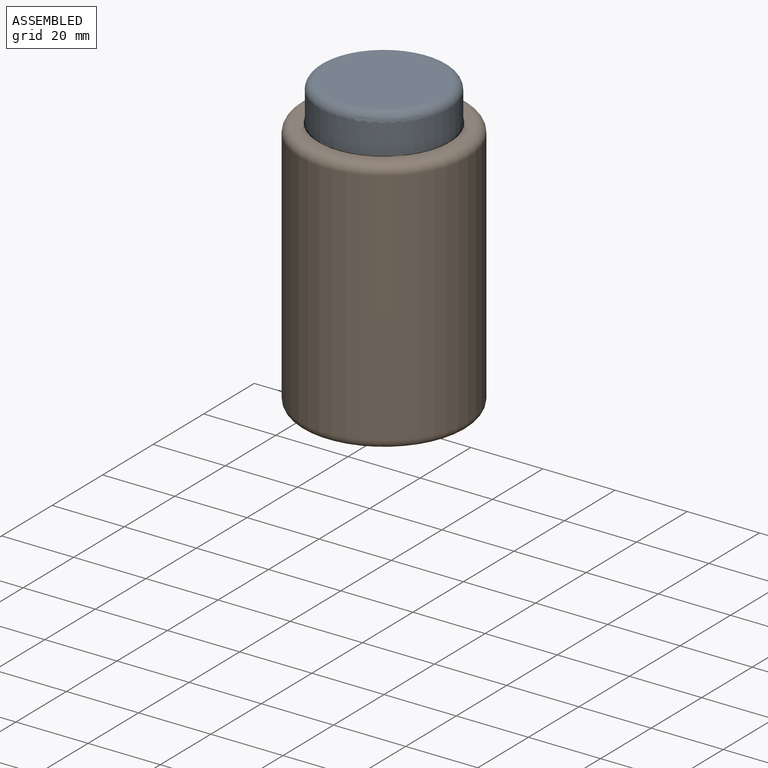
[diagram: assembled view]
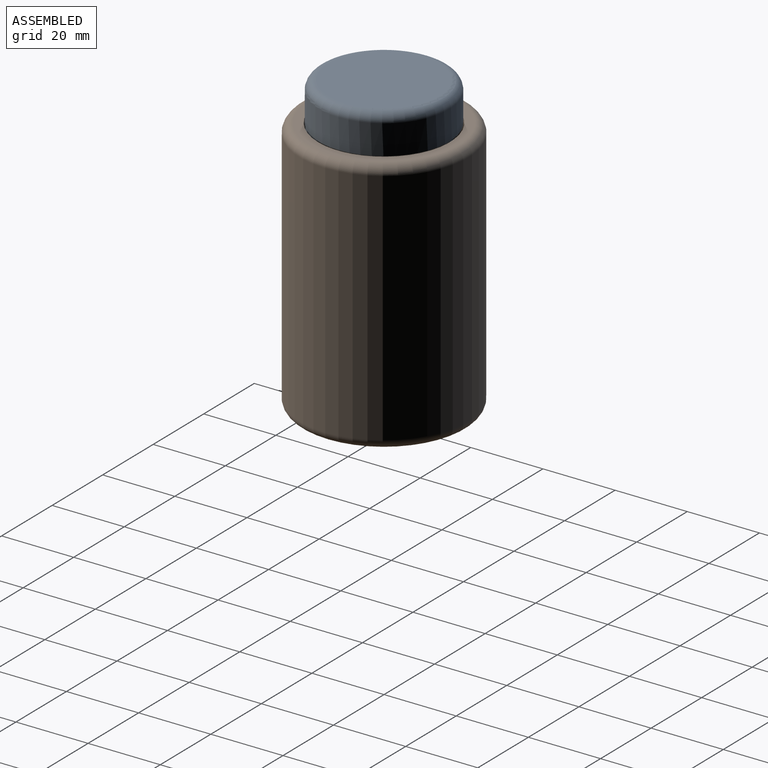
[diagram: assembled view, second angle]
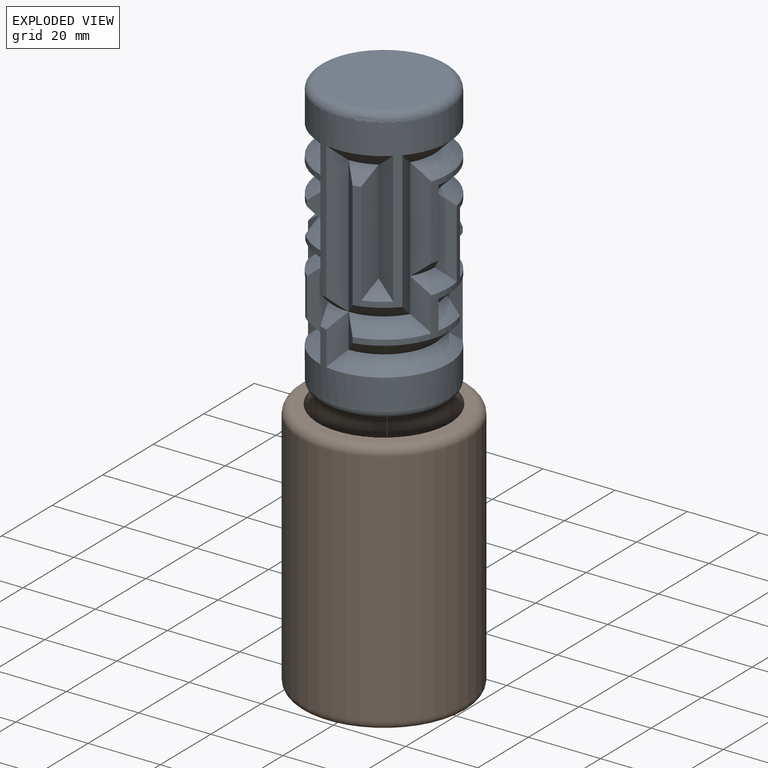
[diagram: exploded view]
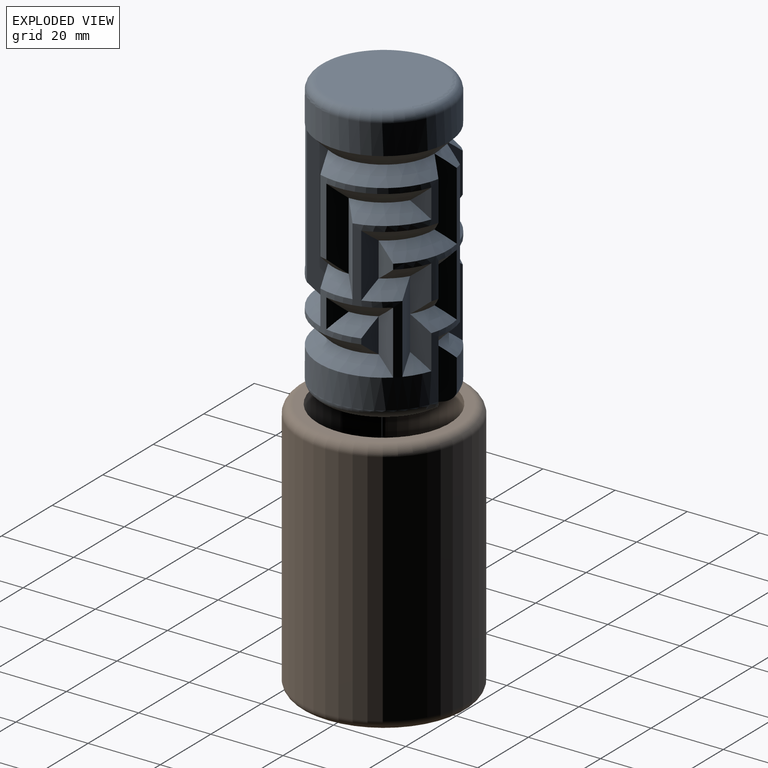
[diagram: exploded view, second angle]
ASSEMBLY  parts=2 mates=2
PART A: 108 faces, bbox 39x39x77 mm
  f0: cylinder r=18mm len=46.25mm, axis (0,0,-1), area 1230.6mm2, adj f27,f40,f41,f42,f43,f44,f45,f46
  f1: cylinder r=18mm len=55.75mm, axis (0,0,-1), area 1625.7mm2, adj f2,f3,f4,f5,f6,f7,f8,f9
  f2: plane 18.75x3.63mm, normal (-0.71,0.71,0), area 84.1mm2, adj f1,f3,f83,f102,f106
  f3: cone r=14mm half-angle=45deg, axis (0,0,1), area 47.4mm2, adj f1,f2,f5,f22
  f4: plane 23x4.96mm, normal (0.26,0.97,0), area 97.5mm2, adj f1,f5,f22,f36
  f5: cone r=14mm half-angle=45deg, axis (0,0,-1), area 47.4mm2, adj f1,f3,f4,f83
  f6: plane 17.5x4.96mm, normal (-0.97,-0.26,0), area 68.7mm2, adj f1,f7,f23,f84
  f7: cone r=14mm half-angle=45deg, axis (0,0,-1), area 68.6mm2, adj f1,f6,f8,f9
  f8: plane 8x3.63mm, normal (-0.71,0.71,0), area 20mm2, adj f1,f7,f9
  f9: cone r=14mm half-angle=45deg, axis (0,0,1), area 47.4mm2, adj f1,f7,f8,f84
  f10: plane 13.5x4.96mm, normal (-0.26,-0.97,0), area 48.8mm2, adj f1,f11,f24,f25
  f11: cone r=14mm half-angle=45deg, axis (0,0,-1), area 68.6mm2, adj f1,f10,f12,f85
  f12: plane 13.5x4.96mm, normal (-0.97,-0.26,0), area 48.8mm2, adj f1,f11,f26,f89
  f13: plane 13.5x3.63mm, normal (0.71,-0.71,0), area 48.8mm2, adj f1,f14,f87,f89
  f14: cone r=14mm half-angle=45deg, axis (0,0,-1), area 210.7mm2, adj f1,f13,f15,f16
  f15: cone r=14mm half-angle=45deg, axis (0,0,1), area 168.4mm2, adj f1,f14,f86,f87
  f16: plane 17.5x4.96mm, normal (0.97,-0.26,0), area 68.7mm2, adj f1,f14,f31,f86
  f17: plane 23x4.96mm, normal (-0.26,0.97,0), area 97.5mm2, adj f1,f18,f19,f51,f52
  f18: plane 13.5x4.96mm, normal (0.97,0.26,0), area 48.8mm2, adj f1,f17,f19,f21
  f19: cone r=14mm half-angle=45deg, axis (0,0,-1), area 21.2mm2, adj f1,f17,f18
  f20: plane 17.5x3.63mm, normal (0.71,0.71,0), area 68.7mm2, adj f1,f21,f33,f34
  f21: cone r=14mm half-angle=45deg, axis (0,0,-1), area 47.4mm2, adj f1,f18,f20,f88
  f22: plane 23x4.96mm, normal (-0.97,0.26,0), area 97.5mm2, adj f1,f3,f4,f35
  f23: cone r=14mm half-angle=45deg, axis (0,0,1), area 116mm2, adj f1,f6,f24,f25
  f24: cone r=14mm half-angle=45deg, axis (0,0,-1), area 73.6mm2, adj f1,f10,f23,f84
  f25: plane 13.5x4.96mm, normal (-0.97,0.26,0), area 48.8mm2, adj f1,f10,f23,f85
  f26: plane 19x4.96mm, normal (0.26,-0.97,0), area 77.6mm2, adj f1,f12,f39,f40,f85
  f27: cone r=14mm half-angle=45deg, axis (0,0,1), area 73.6mm2, adj f0,f28,f43,f47
  f28: cone r=14mm half-angle=45deg, axis (0,0,-1), area 94.8mm2, adj f1,f27,f29,f87
  f29: plane 13.5x4.96mm, normal (0.26,-0.97,0), area 48.8mm2, adj f1,f28,f47,f49
  f30: plane 8x3.63mm, normal (0.71,0.71,0), area 20mm2, adj f1,f31,f32
  f31: cone r=14mm half-angle=45deg, axis (0,0,1), area 68.6mm2, adj f1,f16,f30,f32
  f32: cone r=14mm half-angle=45deg, axis (0,0,-1), area 47.4mm2, adj f1,f30,f31,f86
  f33: plane 13.5x3.63mm, normal (-0.71,0.71,0), area 48.8mm2, adj f1,f20,f34,f88
  f34: cone r=14mm half-angle=45deg, axis (0,0,1), area 21.2mm2, adj f1,f20,f33
  f35: cone r=14mm half-angle=45deg, axis (0,0,1), area 94.8mm2, adj f1,f22,f36,f60
  f36: cone r=14mm half-angle=45deg, axis (0,0,-1), area 94.8mm2, adj f1,f4,f35,f37
  f37: plane 13.5x3.63mm, normal (-0.71,0.71,0), area 48.8mm2, adj f1,f36,f60,f94
  f38: plane 13.5x4.96mm, normal (-0.26,-0.97,0), area 48.8mm2, adj f1,f39,f91,f94
  f39: cone r=14mm half-angle=45deg, axis (0,0,-1), area 47.4mm2, adj f1,f26,f38,f41
  f40: plane 13.5x4.96mm, normal (-0.97,-0.26,0), area 48.8mm2, adj f0,f26,f41,f90
  f41: cone r=14mm half-angle=45deg, axis (0,0,1), area 47.4mm2, adj f0,f39,f40,f91
  f42: plane 42x3.63mm, normal (0.71,-0.71,0), area 195.1mm2, adj f0,f43,f81,f90
  f43: plane 38x3.63mm, normal (-0.71,-0.71,0), area 175.1mm2, adj f0,f27,f42,f100
  f44: plane 32.5x4.96mm, normal (0.97,-0.26,0), area 146.3mm2, adj f0,f45,f46,f100
  f45: plane 36.5x4.96mm, normal (-0.26,-0.97,0), area 166.3mm2, adj f0,f44,f46,f81
  f46: cone r=14mm half-angle=45deg, axis (0,0,-1), area 21.2mm2, adj f0,f44,f45
  f47: plane 42x4.96mm, normal (0.97,0.26,0), area 195.1mm2, adj f0,f27,f29,f64,f75
  f48: plane 23x3.63mm, normal (0.71,-0.71,0), area 97.5mm2, adj f1,f49,f65,f73
  f49: cone r=14mm half-angle=45deg, axis (0,0,-1), area 47.4mm2, adj f1,f29,f48,f93
  f50: plane 17.5x4.96mm, normal (0.26,0.97,0), area 68.7mm2, adj f1,f51,f66,f92
  f51: cone r=14mm half-angle=45deg, axis (0,0,-1), area 47.4mm2, adj f1,f17,f50,f53
  f52: plane 13.5x4.96mm, normal (0.97,0.26,0), area 48.8mm2, adj f1,f17,f53,f88
  f53: cone r=14mm half-angle=45deg, axis (0,0,1), area 47.4mm2, adj f1,f51,f52,f92
  f54: plane 23x3.63mm, normal (0.71,0.71,0), area 97.5mm2, adj f1,f55,f67,f98
  f55: cone r=14mm half-angle=45deg, axis (0,0,-1), area 94.8mm2, adj f1,f54,f66,f92
  f56: plane 23x4.96mm, normal (-0.97,0.26,0), area 97.5mm2, adj f1,f57,f68,f98
  f57: cone r=14mm half-angle=45deg, axis (0,0,-1), area 68.6mm2, adj f1,f56,f58,f59
  f58: plane 8x4.96mm, normal (-0.26,0.97,0), area 20mm2, adj f1,f57,f59
  f59: cone r=14mm half-angle=45deg, axis (0,0,1), area 47.4mm2, adj f1,f57,f58,f68
  f60: plane 13.5x3.63mm, normal (-0.71,-0.71,0), area 48.8mm2, adj f1,f35,f37,f61
  f61: cone r=14mm half-angle=45deg, axis (0,0,1), area 94.8mm2, adj f1,f60,f63,f94,f95
  f62: plane 17.5x4.96mm, normal (-0.97,-0.26,0), area 68.7mm2, adj f0,f63,f71,f95
  f63: cone r=14mm half-angle=45deg, axis (0,0,-1), area 47.4mm2, adj f0,f61,f62,f91
  f64: plane 28.5x4.96mm, normal (0.26,-0.97,0), area 126.3mm2, adj f1,f47,f82,f93
  f65: plane 23x3.63mm, normal (0.71,0.71,0), area 97.5mm2, adj f1,f48,f72,f93
  f66: cone r=14mm half-angle=45deg, axis (0,0,1), area 94.8mm2, adj f1,f50,f55,f67
  f67: plane 19x3.63mm, normal (-0.71,0.71,0), area 77.6mm2, adj f1,f54,f66,f82
  f68: plane 19x4.96mm, normal (0.26,0.97,0), area 77.6mm2, adj f1,f56,f59,f99
  f69: plane 13.5x4.96mm, normal (-0.97,-0.26,0), area 48.8mm2, adj f1,f70,f76,f99
  f70: cone r=14mm half-angle=45deg, axis (0,0,-1), area 142.2mm2, adj f1,f69,f71,f95,f96
  f71: cone r=14mm half-angle=45deg, axis (0,0,1), area 94.8mm2, adj f0,f62,f70,f97
  f72: cone r=14mm half-angle=45deg, axis (0,0,1), area 116mm2, adj f1,f65,f73,f74
  f73: cone r=14mm half-angle=45deg, axis (0,0,-1), area 94.8mm2, adj f1,f48,f72,f74
  f74: plane 8x4.96mm, normal (0.97,0.26,0), area 20mm2, adj f1,f72,f73
  f75: cone r=14mm half-angle=45deg, axis (0,0,1), area 305.5mm2, adj f0,f47,f76,f82,f98,f99
  f76: plane 13.5x4.96mm, normal (-0.26,0.97,0), area 48.8mm2, adj f0,f69,f75,f96
  f77: plane 13.5x3.63mm, normal (-0.71,-0.71,0), area 48.8mm2, adj f0,f78,f96,f97
  f78: cone r=14mm half-angle=45deg, axis (0,0,1), area 116mm2, adj f0,f77,f79,f80
  f79: cone r=14mm half-angle=45deg, axis (0,0,-1), area 94.8mm2, adj f0,f78,f80,f97
  f80: plane 8x4.96mm, normal (-0.97,-0.26,0), area 20mm2, adj f0,f78,f79
  f81: cone r=14mm half-angle=45deg, axis (0,0,1), area 68.6mm2, adj f0,f42,f45,f100
  f82: cone r=14mm half-angle=45deg, axis (0,0,-1), area 168.4mm2, adj f1,f64,f67,f75
  f83: plane 14.75x3.63mm, normal (0.71,0.71,0), area 64.1mm2, adj f1,f2,f5,f102,f106
  f84: plane 9.5x4.96mm, normal (-0.26,0.97,0), area 28.8mm2, adj f1,f6,f9,f24
  f85: cone r=14mm half-angle=45deg, axis (0,0,1), area 26.2mm2, adj f1,f11,f25,f26
  f86: plane 9.5x4.96mm, normal (0.26,0.97,0), area 28.8mm2, adj f1,f15,f16,f32
  f87: plane 9.5x3.63mm, normal (-0.71,-0.71,0), area 28.8mm2, adj f1,f13,f15,f28
  f88: cone r=14mm half-angle=45deg, axis (0,0,1), area 26.2mm2, adj f1,f21,f33,f52
  f89: cone r=14mm half-angle=45deg, axis (0,0,-1), area 26.2mm2, adj f1,f12,f13,f90
  f90: cone r=14mm half-angle=45deg, axis (0,0,1), area 26.2mm2, adj f0,f40,f42,f89
  f91: plane 9.5x4.96mm, normal (-0.97,0.26,0), area 28.8mm2, adj f0,f38,f41,f63
  f92: plane 9.5x4.96mm, normal (0.97,-0.26,0), area 28.8mm2, adj f1,f50,f53,f55
  f93: cone r=14mm half-angle=45deg, axis (0,0,1), area 26.2mm2, adj f1,f49,f64,f65
  f94: cone r=14mm half-angle=45deg, axis (0,0,-1), area 26.2mm2, adj f1,f37,f38,f61
  f95: plane 9.5x4.96mm, normal (0.26,-0.97,0), area 28.8mm2, adj f1,f61,f62,f70
  f96: cone r=14mm half-angle=45deg, axis (0,0,1), area 26.2mm2, adj f0,f70,f76,f77
  f97: plane 9.5x3.63mm, normal (-0.71,0.71,0), area 28.8mm2, adj f0,f71,f77,f79
  f98: cone r=14mm half-angle=45deg, axis (0,0,-1), area 26.2mm2, adj f1,f54,f56,f75
  f99: cone r=14mm half-angle=45deg, axis (0,0,-1), area 26.2mm2, adj f1,f68,f69,f75
  f100: cone r=14mm half-angle=45deg, axis (0,0,-1), area 26.2mm2, adj f0,f43,f44,f81
  f101: plane 31x31mm, normal (0,0,1), area 754.8mm2, adj f107
  f102: plane 31x30.93mm, normal (0,0,-1), area 261.7mm2, adj f2,f83,f105,f106
  f103: plane 20x20mm, normal (0,0,-1), area 314.2mm2, adj f104
  f104: cylinder r=10mm len=64.5mm, axis (0,0,-1), area 4052.7mm2, adj f103,f105
  f105: torus R=12.5mm, axis (0,0,1), area 269.2mm2, adj f102,f104
  f106: torus R=15.5mm, axis (0,0,1), area 399.3mm2, adj f1,f2,f83,f102
  f107: torus R=15.5mm, axis (0,0,1), area 421.7mm2, adj f0,f101
PART B: 11 faces, bbox 50.3x50.3x71.3 mm
  f0: cylinder r=23.25mm len=66.25mm, axis (0,0,1), area 9678.1mm2, adj f9,f10
  f1: plane 41.5x41.5mm, normal (0,0,-1), area 1352.7mm2, adj f10
  f2: cylinder r=18.25mm len=66.25mm, axis (0,0,-1), area 7538.2mm2, adj f3,f4,f6,f7,f8
  f3: plane 41.5x41.5mm, normal (0,0,1), area 306.3mm2, adj f2,f5,f9
  f4: plane 36.5x36.5mm, normal (0,0,1), area 1046.3mm2, adj f2
  f5: cone r=18.25mm half-angle=45deg, axis (0,0,1), area 21.2mm2, adj f3,f7,f8
  f6: cone r=14.25mm half-angle=45deg, axis (0,0,-1), area 21.2mm2, adj f2,f7,f8
  f7: plane 8x3.64mm, normal (-0.71,-0.71,0), area 20mm2, adj f2,f5,f6
  f8: plane 8x3.64mm, normal (-0.71,0.71,0), area 20mm2, adj f2,f5,f6
  f9: torus R=20.75mm, axis (0,0,1), area 551.3mm2, adj f0,f3
  f10: torus R=20.75mm, axis (0,0,1), area 551.3mm2, adj f0,f1
PLACE A at identity fixed
PLACE B t=(0,0,-14.75)mm
MATE cylindrical B.f2 <-> A.f0  axis (0,0,-1) through (0,0,18.37)mm
MATE planar B.f2 <-> A.f102  axis (0,0,1) through (0,0,-14.75)mm
